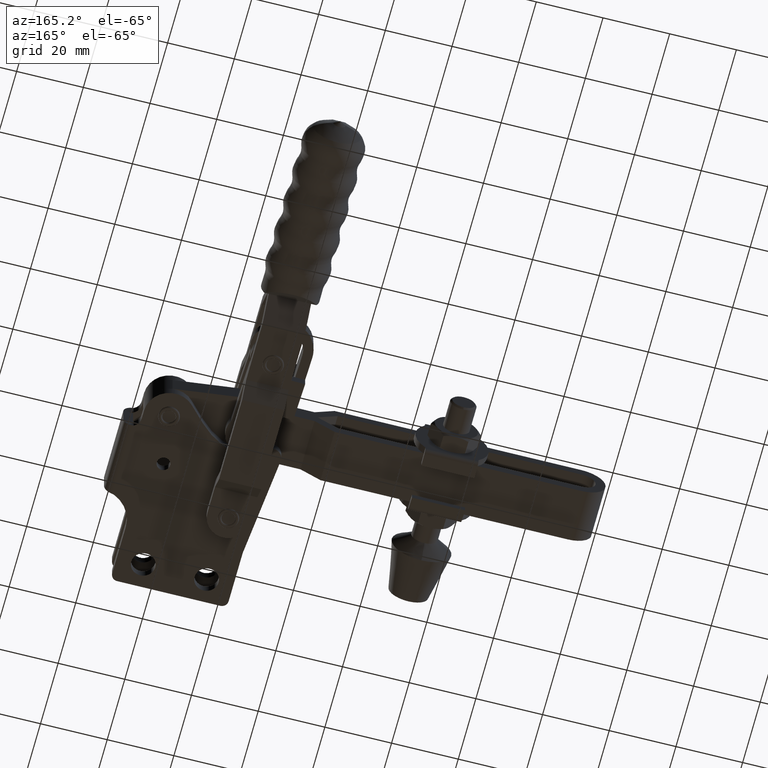
[diagram: clean part render]
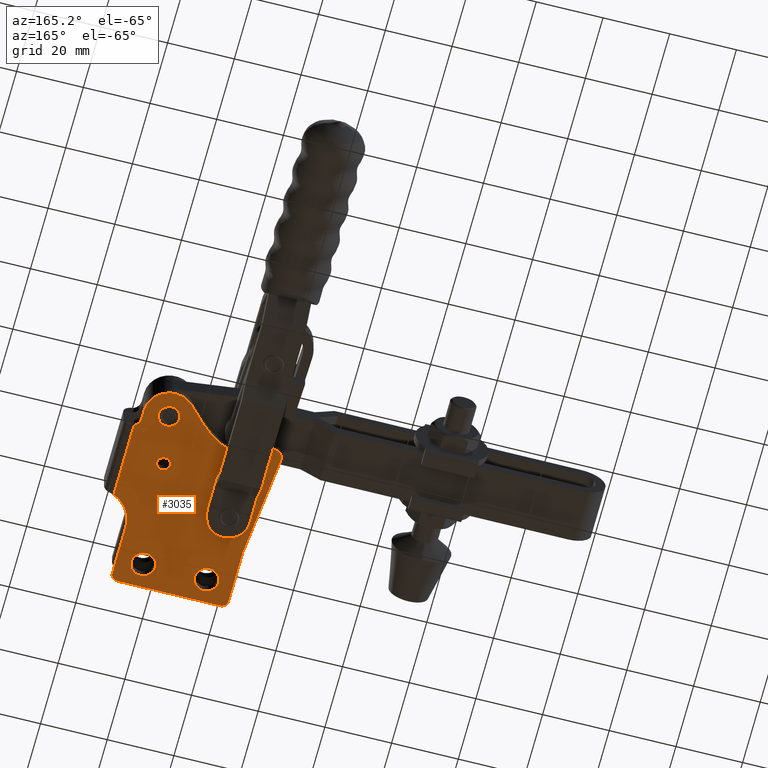
[diagram: same view with one face highlighted and labeled with its STEP entity id]
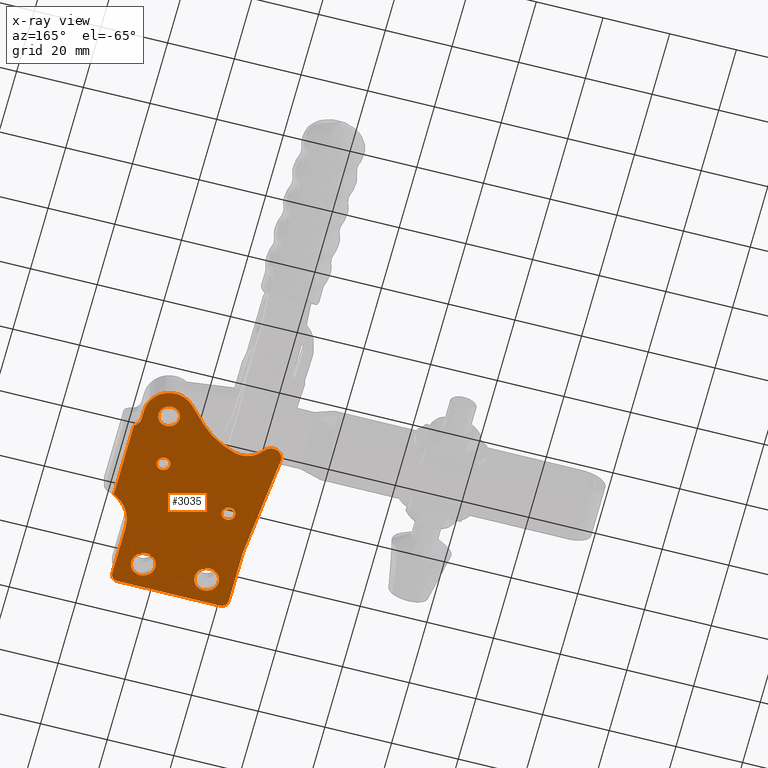
[diagram: x-ray of the same camera — body ghosted, the highlighted face saturated]
A machine part, auxiliary view. The second image highlights one B-rep face of the part: STEP entity #3035.
The next image is the same camera in x-ray: the body ghosted, the highlighted face saturated — about 0% of this face is hidden behind the body in this view.
In plain terms, the highlighted planar face has unit normal (0, 0, -1).
Its self-contained STEP definition (entity closure, byte-faithful):
#12 = DIRECTION ( 'NONE',  ( 7.034546684939453800E-018, 3.150134990220476500E-018, -1.000000000000000000 ) ) ;
#25 = LINE ( 'NONE', #2330, #11115 ) ;
#100 = VECTOR ( 'NONE', #7962, 1000.000000000000100 ) ;
#136 = CARTESIAN_POINT ( 'NONE',  ( -13.44999999999996900, -7.900000000000260600, -6.000000000000014200 ) ) ;
#193 = EDGE_CURVE ( 'NONE', #6949, #741, #7755, .T. ) ;
#227 = CARTESIAN_POINT ( 'NONE',  ( -44.14000000000020700, 34.49999999999974400, -6.000000000000014200 ) ) ;
#251 = CIRCLE ( 'NONE', #911, 2.999999999999933400 ) ;
#274 = VECTOR ( 'NONE', #7735, 1000.000000000000000 ) ;
#291 = CARTESIAN_POINT ( 'NONE',  ( -44.00000000000017100, 2.999999999999884500, -6.000000000000014200 ) ) ;
#325 = VERTEX_POINT ( 'NONE', #8790 ) ;
#348 = EDGE_CURVE ( 'NONE', #2744, #2944, #251, .T. ) ;
#376 = DIRECTION ( 'NONE',  ( 7.034546684939453800E-018, 3.150134990220476500E-018, -1.000000000000000000 ) ) ;
#395 = CARTESIAN_POINT ( 'NONE',  ( -16.50000000000003900, 24.69999999999972900, -6.000000000000012400 ) ) ;
#464 = EDGE_CURVE ( 'NONE', #5105, #1571, #11190, .T. ) ;
#477 = ORIENTED_EDGE ( 'NONE', *, *, #7818, .T. ) ;
#488 = CARTESIAN_POINT ( 'NONE',  ( -36.80000000000020300, 14.09999999999973900, -6.000000000000012400 ) ) ;
#563 = AXIS2_PLACEMENT_3D ( 'NONE', #9698, #3936, #10656 ) ;
#591 = DIRECTION ( 'NONE',  ( 7.034546684939453800E-018, 3.150134990220476500E-018, -1.000000000000000000 ) ) ;
#689 = CIRCLE ( 'NONE', #7146, 2.999999999999933400 ) ;
#741 = VERTEX_POINT ( 'NONE', #10727 ) ;
#861 = EDGE_CURVE ( 'NONE', #8502, #8454, #3379, .T. ) ;
#874 = DIRECTION ( 'NONE',  ( 1.000000000000000000, 0.0000000000000000000, 0.0000000000000000000 ) ) ;
#904 = DIRECTION ( 'NONE',  ( 7.034546684939453800E-018, 3.150134990220476500E-018, -1.000000000000000000 ) ) ;
#911 = AXIS2_PLACEMENT_3D ( 'NONE', #227, #6901, #1176 ) ;
#951 = CIRCLE ( 'NONE', #6533, 7.499999999999985800 ) ;
#995 = DIRECTION ( 'NONE',  ( -3.150134990220517700E-018, 1.000000000000000000, 3.150134990220476500E-018 ) ) ;
#1019 = AXIS2_PLACEMENT_3D ( 'NONE', #5316, #12013, #6248 ) ;
#1079 = ORIENTED_EDGE ( 'NONE', *, *, #1363, .F. ) ;
#1084 = FACE_BOUND ( 'NONE', #2436, .T. ) ;
#1093 = CARTESIAN_POINT ( 'NONE',  ( -40.30000000000036000, 57.43999999999954300, -6.000000000000012400 ) ) ;
#1176 = DIRECTION ( 'NONE',  ( -1.000000000000000000, 0.0000000000000000000, 0.0000000000000000000 ) ) ;
#1186 = EDGE_CURVE ( 'NONE', #1766, #3155, #1921, .T. ) ;
#1245 = AXIS2_PLACEMENT_3D ( 'NONE', #3845, #10573, #4818 ) ;
#1363 = EDGE_CURVE ( 'NONE', #2281, #5486, #2805, .T. ) ;
#1444 = DIRECTION ( 'NONE',  ( -1.000000000000000000, 0.0000000000000000000, 0.0000000000000000000 ) ) ;
#1486 = VERTEX_POINT ( 'NONE', #7804 ) ;
#1571 = VERTEX_POINT ( 'NONE', #8867 ) ;
#1576 = CARTESIAN_POINT ( 'NONE',  ( -47.14000000000014300, 34.49999999999974400, -6.000000000000014200 ) ) ;
#1577 = AXIS2_PLACEMENT_3D ( 'NONE', #2008, #8742, #2960 ) ;
#1695 = FACE_BOUND ( 'NONE', #7721, .T. ) ;
#1753 = VERTEX_POINT ( 'NONE', #5810 ) ;
#1766 = VERTEX_POINT ( 'NONE', #136 ) ;
#1921 = CIRCLE ( 'NONE', #4867, 3.600000000000047600 ) ;
#2008 = CARTESIAN_POINT ( 'NONE',  ( -17.05000000000001500, -7.900000000000260600, -6.000000000000014200 ) ) ;
#2054 = VERTEX_POINT ( 'NONE', #7789 ) ;
#2059 = DIRECTION ( 'NONE',  ( -1.000000000000000000, 0.0000000000000000000, 0.0000000000000000000 ) ) ;
#2112 = EDGE_CURVE ( 'NONE', #5486, #2281, #4730, .T. ) ;
#2213 = CARTESIAN_POINT ( 'NONE',  ( -36.05000000000015300, -7.900000000000260600, -6.000000000000014200 ) ) ;
#2281 = VERTEX_POINT ( 'NONE', #5542 ) ;
#2325 = EDGE_CURVE ( 'NONE', #3025, #2054, #10438, .T. ) ;
#2330 = CARTESIAN_POINT ( 'NONE',  ( -39.00000000000007100, -15.00000000000019400, -6.000000000000014200 ) ) ;
#2436 = EDGE_LOOP ( 'NONE', ( #9309, #5121 ) ) ;
#2456 = DIRECTION ( 'NONE',  ( 7.034546684939453800E-018, 3.150134990220476500E-018, -1.000000000000000000 ) ) ;
#2531 = DIRECTION ( 'NONE',  ( 7.034546684939453800E-018, 3.150134990220476500E-018, -1.000000000000000000 ) ) ;
#2572 = EDGE_LOOP ( 'NONE', ( #10549, #11485 ) ) ;
#2637 = CIRCLE ( 'NONE', #11351, 24.99999999999998600 ) ;
#2743 = CIRCLE ( 'NONE', #8920, 2.000000000000003600 ) ;
#2744 = VERTEX_POINT ( 'NONE', #1576 ) ;
#2794 = ORIENTED_EDGE ( 'NONE', *, *, #193, .T. ) ;
#2805 = CIRCLE ( 'NONE', #6703, 2.000000000000001800 ) ;
#2926 = CARTESIAN_POINT ( 'NONE',  ( -9.100000000000196800, 2.342271120390496000, -6.000000000000014200 ) ) ;
#2944 = VERTEX_POINT ( 'NONE', #6705 ) ;
#2960 = DIRECTION ( 'NONE',  ( -1.000000000000000000, 0.0000000000000000000, 0.0000000000000000000 ) ) ;
#3025 = VERTEX_POINT ( 'NONE', #6057 ) ;
#3035 = ADVANCED_FACE ( 'NONE', ( #8763, #1695, #3639, #1084, #10988, #8461 ), #3209, .T. ) ;
#3040 = ORIENTED_EDGE ( 'NONE', *, *, #10722, .T. ) ;
#3155 = VERTEX_POINT ( 'NONE', #6289 ) ;
#3160 = DIRECTION ( 'NONE',  ( -1.000000000000000000, 0.0000000000000000000, 0.0000000000000000000 ) ) ;
#3166 = VECTOR ( 'NONE', #5600, 1000.000000000000000 ) ;
#3209 = PLANE ( 'NONE',  #7180 ) ;
#3221 = CARTESIAN_POINT ( 'NONE',  ( -33.56368271917277500, 33.36465930683336000, -6.000000000000014200 ) ) ;
#3226 = AXIS2_PLACEMENT_3D ( 'NONE', #488, #7186, #1444 ) ;
#3239 = VECTOR ( 'NONE', #3253, 1000.000000000000000 ) ;
#3253 = DIRECTION ( 'NONE',  ( -6.276584017286179000E-016, -1.000000000000000000, -3.150134990220480700E-018 ) ) ;
#3379 = LINE ( 'NONE', #5172, #8193 ) ;
#3408 = ORIENTED_EDGE ( 'NONE', *, *, #464, .T. ) ;
#3550 = LINE ( 'NONE', #4223, #3239 ) ;
#3639 = FACE_BOUND ( 'NONE', #2572, .T. ) ;
#3646 = ORIENTED_EDGE ( 'NONE', *, *, #11810, .T. ) ;
#3778 = CIRCLE ( 'NONE', #1577, 3.600000000000047600 ) ;
#3797 = ORIENTED_EDGE ( 'NONE', *, *, #7422, .F. ) ;
#3820 = CIRCLE ( 'NONE', #7668, 2.000000000000001800 ) ;
#3845 = CARTESIAN_POINT ( 'NONE',  ( -11.10000000000014500, -13.00000000000019700, -6.000000000000014200 ) ) ;
#3936 = DIRECTION ( 'NONE',  ( 7.034546684939453800E-018, 3.150134990220476500E-018, -1.000000000000000000 ) ) ;
#4151 = VERTEX_POINT ( 'NONE', #4447 ) ;
#4185 = VERTEX_POINT ( 'NONE', #9388 ) ;
#4212 = VERTEX_POINT ( 'NONE', #7479 ) ;
#4223 = CARTESIAN_POINT ( 'NONE',  ( -4.700000000000178700, 39.79999999999973400, -6.000000000000014200 ) ) ;
#4226 = AXIS2_PLACEMENT_3D ( 'NONE', #12364, #6590, #874 ) ;
#4229 = EDGE_CURVE ( 'NONE', #8454, #1753, #6141, .T. ) ;
#4236 = EDGE_LOOP ( 'NONE', ( #11672, #8904 ) ) ;
#4346 = CARTESIAN_POINT ( 'NONE',  ( -17.05000000000001500, -7.900000000000260600, -6.000000000000014200 ) ) ;
#4372 = EDGE_CURVE ( 'NONE', #2054, #3025, #7530, .T. ) ;
#4447 = CARTESIAN_POINT ( 'NONE',  ( -3.098960114308579000, 11.50787628339915100, -6.000000000000013300 ) ) ;
#4476 = DIRECTION ( 'NONE',  ( -7.034546684939453800E-018, -3.150134990220476500E-018, 1.000000000000000000 ) ) ;
#4512 = ORIENTED_EDGE ( 'NONE', *, *, #861, .T. ) ;
#4592 = EDGE_CURVE ( 'NONE', #4151, #4212, #5403, .T. ) ;
#4604 = DIRECTION ( 'NONE',  ( 7.034546684939453800E-018, 3.150134990220476500E-018, -1.000000000000000000 ) ) ;
#4632 = CARTESIAN_POINT ( 'NONE',  ( -12.20000000000019100, 39.79999999999973400, -6.000000000000014200 ) ) ;
#4651 = CARTESIAN_POINT ( 'NONE',  ( -3.098960114308574100, 2.049999999999808900, -6.000000000000014200 ) ) ;
#4730 = CIRCLE ( 'NONE', #3226, 2.000000000000001800 ) ;
#4807 = EDGE_CURVE ( 'NONE', #11023, #325, #10076, .T. ) ;
#4818 = DIRECTION ( 'NONE',  ( -1.000000000000000000, 0.0000000000000000000, 0.0000000000000000000 ) ) ;
#4825 = LINE ( 'NONE', #7723, #11858 ) ;
#4867 = AXIS2_PLACEMENT_3D ( 'NONE', #4346, #11068, #5325 ) ;
#4934 = CARTESIAN_POINT ( 'NONE',  ( -42.00000000000016300, -15.00000000000019400, -6.000000000000014200 ) ) ;
#5013 = EDGE_CURVE ( 'NONE', #4185, #5862, #6286, .T. ) ;
#5071 = EDGE_CURVE ( 'NONE', #5516, #5497, #25, .T. ) ;
#5105 = VERTEX_POINT ( 'NONE', #8159 ) ;
#5121 = ORIENTED_EDGE ( 'NONE', *, *, #5013, .F. ) ;
#5172 = CARTESIAN_POINT ( 'NONE',  ( -22.23240969598106500, 40.16104804665158700, -6.000000000000014200 ) ) ;
#5316 = CARTESIAN_POINT ( 'NONE',  ( -12.20000000000018400, 39.79999999999972700, -6.000000000000014200 ) ) ;
#5325 = DIRECTION ( 'NONE',  ( -1.000000000000000000, 0.0000000000000000000, 0.0000000000000000000 ) ) ;
#5403 = CIRCLE ( 'NONE', #4226, 10.00000000000001200 ) ;
#5463 = DIRECTION ( 'NONE',  ( -7.034546684939453800E-018, -3.150134990220476500E-018, 1.000000000000000000 ) ) ;
#5486 = VERTEX_POINT ( 'NONE', #10638 ) ;
#5497 = VERTEX_POINT ( 'NONE', #4934 ) ;
#5516 = VERTEX_POINT ( 'NONE', #8809 ) ;
#5542 = CARTESIAN_POINT ( 'NONE',  ( -34.80000000000019600, 14.09999999999973900, -6.000000000000012400 ) ) ;
#5575 = DIRECTION ( 'NONE',  ( -1.000000000000000000, 0.0000000000000000000, 0.0000000000000000000 ) ) ;
#5600 = DIRECTION ( 'NONE',  ( -3.150134990218940000E-018, 1.000000000000000000, 3.150134990222138200E-018 ) ) ;
#5692 = CARTESIAN_POINT ( 'NONE',  ( -9.100000000000145300, -13.00000000000018700, -6.000000000000014200 ) ) ;
#5724 = CARTESIAN_POINT ( 'NONE',  ( -14.50000000000003600, 24.69999999999972900, -6.000000000000012400 ) ) ;
#5810 = CARTESIAN_POINT ( 'NONE',  ( -4.700000000000178700, 39.79999999999973400, -6.000000000000014200 ) ) ;
#5862 = VERTEX_POINT ( 'NONE', #395 ) ;
#5883 = ORIENTED_EDGE ( 'NONE', *, *, #11244, .T. ) ;
#5956 = LINE ( 'NONE', #2926, #274 ) ;
#6037 = AXIS2_PLACEMENT_3D ( 'NONE', #11233, #5463, #12180 ) ;
#6057 = CARTESIAN_POINT ( 'NONE',  ( -9.050003761315963400, 39.79999999999972700, -6.000000000000014200 ) ) ;
#6141 = CIRCLE ( 'NONE', #7027, 7.500000000000018700 ) ;
#6248 = DIRECTION ( 'NONE',  ( -1.000000000000000000, 0.0000000000000000000, 0.0000000000000000000 ) ) ;
#6286 = CIRCLE ( 'NONE', #11636, 2.000000000000003600 ) ;
#6289 = CARTESIAN_POINT ( 'NONE',  ( -20.65000000000006300, -7.900000000000260600, -6.000000000000014200 ) ) ;
#6302 = CARTESIAN_POINT ( 'NONE',  ( -42.00000000000016300, -13.00000000000019400, -6.000000000000014200 ) ) ;
#6476 = CIRCLE ( 'NONE', #1245, 2.000000000000000000 ) ;
#6533 = AXIS2_PLACEMENT_3D ( 'NONE', #10252, #4476, #11202 ) ;
#6590 = DIRECTION ( 'NONE',  ( -7.034546684939453800E-018, -3.150134990220476500E-018, 1.000000000000000000 ) ) ;
#6631 = CARTESIAN_POINT ( 'NONE',  ( -12.20000000000018400, 39.79999999999972700, -6.000000000000014200 ) ) ;
#6664 = EDGE_CURVE ( 'NONE', #4212, #6931, #5956, .T. ) ;
#6691 = DIRECTION ( 'NONE',  ( -1.000000000000000000, 0.0000000000000000000, 0.0000000000000000000 ) ) ;
#6703 = AXIS2_PLACEMENT_3D ( 'NONE', #8192, #2456, #9166 ) ;
#6705 = CARTESIAN_POINT ( 'NONE',  ( -41.69559368669190000, 36.23921757565213400, -6.000000000000012400 ) ) ;
#6901 = DIRECTION ( 'NONE',  ( 7.034546684939453800E-018, 3.150134990220476500E-018, -1.000000000000000000 ) ) ;
#6931 = VERTEX_POINT ( 'NONE', #5692 ) ;
#6949 = VERTEX_POINT ( 'NONE', #8547 ) ;
#7027 = AXIS2_PLACEMENT_3D ( 'NONE', #4632, #11340, #5575 ) ;
#7063 = DIRECTION ( 'NONE',  ( -1.000000000000000000, -3.150134990220517700E-018, -7.034546684939453800E-018 ) ) ;
#7089 = EDGE_LOOP ( 'NONE', ( #9762, #9990, #3646, #2794, #477, #10566, #5883, #9650, #4512, #8705, #11851, #3408, #10525, #8862, #9393, #3040 ) ) ;
#7128 = DIRECTION ( 'NONE',  ( 0.6911580781339196100, 0.7227036121607712800, 7.138597703532629700E-018 ) ) ;
#7146 = AXIS2_PLACEMENT_3D ( 'NONE', #10361, #4604, #11317 ) ;
#7180 = AXIS2_PLACEMENT_3D ( 'NONE', #10896, #376, #7063 ) ;
#7186 = DIRECTION ( 'NONE',  ( 7.034546684939453800E-018, 3.150134990220476500E-018, -1.000000000000000000 ) ) ;
#7297 = DIRECTION ( 'NONE',  ( -1.000000000000000000, 0.0000000000000000000, 0.0000000000000000000 ) ) ;
#7422 = EDGE_CURVE ( 'NONE', #325, #11023, #8840, .T. ) ;
#7479 = CARTESIAN_POINT ( 'NONE',  ( -9.100000000000196800, 2.342271120390496000, -6.000000000000014200 ) ) ;
#7530 = CIRCLE ( 'NONE', #1019, 3.149996238684222000 ) ;
#7629 = DIRECTION ( 'NONE',  ( -1.000000000000000000, 0.0000000000000000000, 0.0000000000000000000 ) ) ;
#7634 = EDGE_CURVE ( 'NONE', #1753, #5105, #3550, .T. ) ;
#7668 = AXIS2_PLACEMENT_3D ( 'NONE', #6302, #591, #7297 ) ;
#7721 = EDGE_LOOP ( 'NONE', ( #3797, #10834 ) ) ;
#7723 = CARTESIAN_POINT ( 'NONE',  ( -44.00000000000017100, 2.999999999999884500, -6.000000000000014200 ) ) ;
#7735 = DIRECTION ( 'NONE',  ( 3.376383717151691500E-015, -1.000000000000000000, -3.150134990220453000E-018 ) ) ;
#7755 = LINE ( 'NONE', #291, #100 ) ;
#7789 = CARTESIAN_POINT ( 'NONE',  ( -15.34999623868440600, 39.79999999999972700, -6.000000000000014200 ) ) ;
#7804 = CARTESIAN_POINT ( 'NONE',  ( -44.00000000000017100, -13.00000000000019200, -6.000000000000014200 ) ) ;
#7815 = DIRECTION ( 'NONE',  ( -7.034546684939453800E-018, -3.150134990220476500E-018, 1.000000000000000000 ) ) ;
#7818 = EDGE_CURVE ( 'NONE', #741, #2744, #689, .T. ) ;
#7962 = DIRECTION ( 'NONE',  ( -0.09966041305296324800, 0.9950215083454793100, 2.433386241199668700E-018 ) ) ;
#7979 = LINE ( 'NONE', #4651, #3166 ) ;
#8078 = DIRECTION ( 'NONE',  ( -1.000000000000000000, 1.361850839637407300E-016, -7.034546684939453800E-018 ) ) ;
#8159 = CARTESIAN_POINT ( 'NONE',  ( -4.700000000000187600, 37.04999999999972700, -6.000000000000014200 ) ) ;
#8192 = CARTESIAN_POINT ( 'NONE',  ( -36.80000000000020300, 14.09999999999973900, -6.000000000000012400 ) ) ;
#8193 = VECTOR ( 'NONE', #7128, 1000.000000000000100 ) ;
#8293 = CARTESIAN_POINT ( 'NONE',  ( -14.50000000000003600, 24.69999999999972900, -6.000000000000012400 ) ) ;
#8454 = VERTEX_POINT ( 'NONE', #10340 ) ;
#8461 = FACE_OUTER_BOUND ( 'NONE', #7089, .T. ) ;
#8502 = VERTEX_POINT ( 'NONE', #9458 ) ;
#8547 = CARTESIAN_POINT ( 'NONE',  ( -44.00000000000017100, 2.999999999999884500, -6.000000000000014200 ) ) ;
#8666 = EDGE_CURVE ( 'NONE', #8942, #8502, #2637, .T. ) ;
#8705 = ORIENTED_EDGE ( 'NONE', *, *, #4229, .T. ) ;
#8742 = DIRECTION ( 'NONE',  ( 7.034546684939453800E-018, 3.150134990220476500E-018, -1.000000000000000000 ) ) ;
#8763 = FACE_BOUND ( 'NONE', #11309, .T. ) ;
#8790 = CARTESIAN_POINT ( 'NONE',  ( -39.65000000000019800, -7.900000000000260600, -6.000000000000014200 ) ) ;
#8809 = CARTESIAN_POINT ( 'NONE',  ( -11.10000000000014500, -15.00000000000019700, -6.000000000000014200 ) ) ;
#8840 = CIRCLE ( 'NONE', #563, 3.600000000000047600 ) ;
#8862 = ORIENTED_EDGE ( 'NONE', *, *, #4592, .T. ) ;
#8867 = CARTESIAN_POINT ( 'NONE',  ( -3.098960114308573200, 34.39615173783888500, -6.000000000000014200 ) ) ;
#8904 = ORIENTED_EDGE ( 'NONE', *, *, #4372, .F. ) ;
#8920 = AXIS2_PLACEMENT_3D ( 'NONE', #5724, #12, #6691 ) ;
#8942 = VERTEX_POINT ( 'NONE', #3221 ) ;
#8953 = DIRECTION ( 'NONE',  ( 7.034546684939453800E-018, 3.150134990220476500E-018, -1.000000000000000000 ) ) ;
#9012 = CARTESIAN_POINT ( 'NONE',  ( -32.45000000000010200, -7.900000000000260600, -6.000000000000014200 ) ) ;
#9108 = EDGE_CURVE ( 'NONE', #5497, #1486, #3820, .T. ) ;
#9166 = DIRECTION ( 'NONE',  ( -1.000000000000000000, 0.0000000000000000000, 0.0000000000000000000 ) ) ;
#9265 = DIRECTION ( 'NONE',  ( -1.000000000000000000, 0.0000000000000000000, 0.0000000000000000000 ) ) ;
#9309 = ORIENTED_EDGE ( 'NONE', *, *, #11400, .F. ) ;
#9388 = CARTESIAN_POINT ( 'NONE',  ( -12.50000000000003200, 24.69999999999972900, -6.000000000000012400 ) ) ;
#9393 = ORIENTED_EDGE ( 'NONE', *, *, #6664, .T. ) ;
#9445 = AXIS2_PLACEMENT_3D ( 'NONE', #6631, #904, #7629 ) ;
#9458 = CARTESIAN_POINT ( 'NONE',  ( -22.23240969598106500, 40.16104804665158700, -6.000000000000014200 ) ) ;
#9650 = ORIENTED_EDGE ( 'NONE', *, *, #8666, .T. ) ;
#9698 = CARTESIAN_POINT ( 'NONE',  ( -36.05000000000015300, -7.900000000000260600, -6.000000000000014200 ) ) ;
#9762 = ORIENTED_EDGE ( 'NONE', *, *, #5071, .T. ) ;
#9809 = AXIS2_PLACEMENT_3D ( 'NONE', #2213, #8953, #3160 ) ;
#9990 = ORIENTED_EDGE ( 'NONE', *, *, #9108, .T. ) ;
#10076 = CIRCLE ( 'NONE', #9809, 3.600000000000047600 ) ;
#10252 = CARTESIAN_POINT ( 'NONE',  ( -35.58457790342104900, 40.58726151478319400, -6.000000000000014200 ) ) ;
#10340 = CARTESIAN_POINT ( 'NONE',  ( -17.62027709120599900, 44.98368558600413500, -6.000000000000014200 ) ) ;
#10361 = CARTESIAN_POINT ( 'NONE',  ( -44.14000000000020700, 34.49999999999974400, -6.000000000000014200 ) ) ;
#10438 = CIRCLE ( 'NONE', #9445, 3.149996238684222000 ) ;
#10525 = ORIENTED_EDGE ( 'NONE', *, *, #11729, .F. ) ;
#10549 = ORIENTED_EDGE ( 'NONE', *, *, #11441, .F. ) ;
#10566 = ORIENTED_EDGE ( 'NONE', *, *, #348, .T. ) ;
#10573 = DIRECTION ( 'NONE',  ( 7.034546684939453800E-018, 3.150134990220476500E-018, -1.000000000000000000 ) ) ;
#10638 = CARTESIAN_POINT ( 'NONE',  ( -38.80000000000020300, 14.09999999999973900, -6.000000000000012400 ) ) ;
#10656 = DIRECTION ( 'NONE',  ( -1.000000000000000000, 0.0000000000000000000, 0.0000000000000000000 ) ) ;
#10722 = EDGE_CURVE ( 'NONE', #6931, #5516, #6476, .T. ) ;
#10727 = CARTESIAN_POINT ( 'NONE',  ( -47.12506452503657100, 34.20101876084086700, -6.000000000000012400 ) ) ;
#10834 = ORIENTED_EDGE ( 'NONE', *, *, #4807, .F. ) ;
#10896 = CARTESIAN_POINT ( 'NONE',  ( -44.14000000000020700, 34.49999999999974400, -6.000000000000014200 ) ) ;
#10988 = FACE_BOUND ( 'NONE', #4236, .T. ) ;
#11023 = VERTEX_POINT ( 'NONE', #9012 ) ;
#11052 = ORIENTED_EDGE ( 'NONE', *, *, #2112, .F. ) ;
#11068 = DIRECTION ( 'NONE',  ( 7.034546684939453800E-018, 3.150134990220476500E-018, -1.000000000000000000 ) ) ;
#11115 = VECTOR ( 'NONE', #8078, 1000.000000000000000 ) ;
#11190 = CIRCLE ( 'NONE', #6037, 2.999999999999954300 ) ;
#11202 = DIRECTION ( 'NONE',  ( -1.000000000000000000, 0.0000000000000000000, 0.0000000000000000000 ) ) ;
#11233 = CARTESIAN_POINT ( 'NONE',  ( -1.700000000000233300, 37.04999999999972700, -6.000000000000014200 ) ) ;
#11244 = EDGE_CURVE ( 'NONE', #2944, #8942, #951, .T. ) ;
#11309 = EDGE_LOOP ( 'NONE', ( #11052, #1079 ) ) ;
#11317 = DIRECTION ( 'NONE',  ( -1.000000000000000000, 0.0000000000000000000, 0.0000000000000000000 ) ) ;
#11340 = DIRECTION ( 'NONE',  ( 7.034546684939453800E-018, 3.150134990220476500E-018, -1.000000000000000000 ) ) ;
#11351 = AXIS2_PLACEMENT_3D ( 'NONE', #1093, #7815, #2059 ) ;
#11400 = EDGE_CURVE ( 'NONE', #5862, #4185, #2743, .T. ) ;
#11441 = EDGE_CURVE ( 'NONE', #3155, #1766, #3778, .T. ) ;
#11485 = ORIENTED_EDGE ( 'NONE', *, *, #1186, .F. ) ;
#11636 = AXIS2_PLACEMENT_3D ( 'NONE', #8293, #2531, #9265 ) ;
#11672 = ORIENTED_EDGE ( 'NONE', *, *, #2325, .F. ) ;
#11729 = EDGE_CURVE ( 'NONE', #4151, #1571, #7979, .T. ) ;
#11810 = EDGE_CURVE ( 'NONE', #1486, #6949, #4825, .T. ) ;
#11851 = ORIENTED_EDGE ( 'NONE', *, *, #7634, .T. ) ;
#11858 = VECTOR ( 'NONE', #995, 1000.000000000000000 ) ;
#12013 = DIRECTION ( 'NONE',  ( 7.034546684939453800E-018, 3.150134990220476500E-018, -1.000000000000000000 ) ) ;
#12180 = DIRECTION ( 'NONE',  ( -1.000000000000000000, 0.0000000000000000000, 0.0000000000000000000 ) ) ;
#12364 = CARTESIAN_POINT ( 'NONE',  ( 0.8999999999998031800, 2.342271120390496000, -6.000000000000012400 ) ) ;